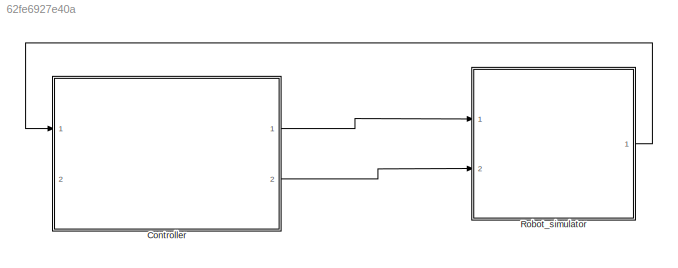
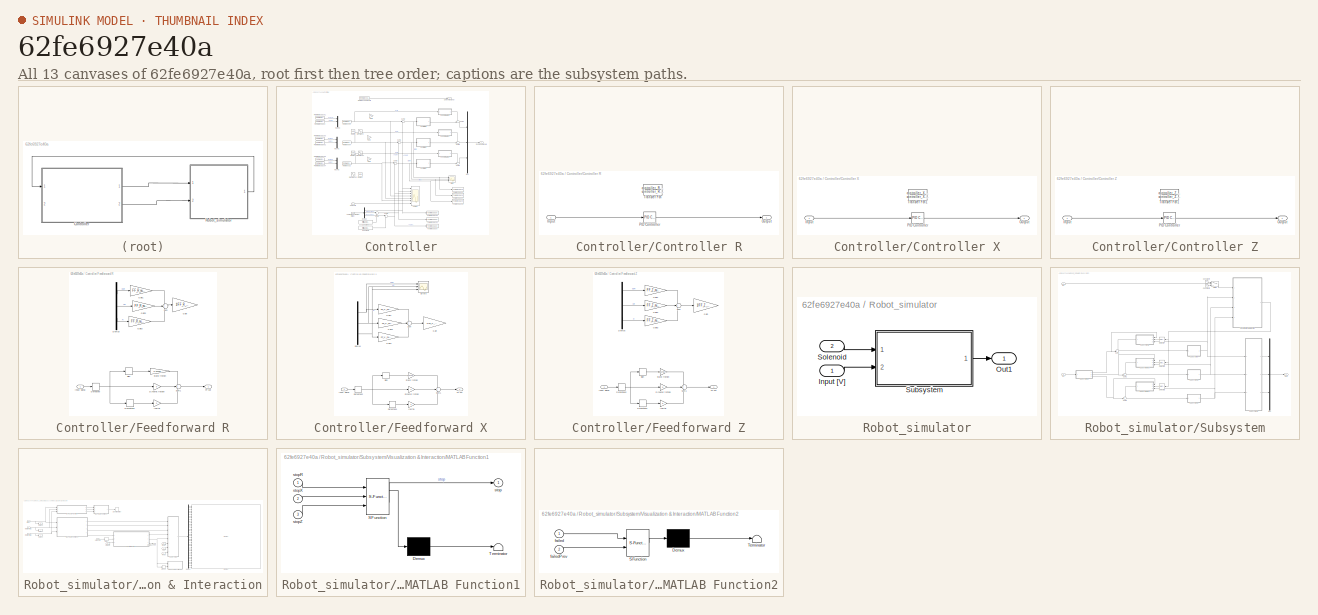
[diagram: thumbnail index - all 13 canvases of the model, root first then tree order]
MODEL slx_62fe6927e40a
KIND model
CONFIG AbsTol = auto
CONFIG EnableMultiTasking = off
CONFIG FixedStep = Ts
CONFIG InitFcn = initRobotArm_p\n\nfs = 2048;\nTs = 1/fs;
CONFIG MaxStep = auto
CONFIG MinStep = auto
CONFIG RelTol = 1e-3
CONFIG SampleTimeConstraint = Unconstrained
CONFIG SolverName = ode3
CONFIG StartFcn = tic
CONFIG StartTime = 0.0
CONFIG StopFcn = toc
CONFIG StopTime = 25
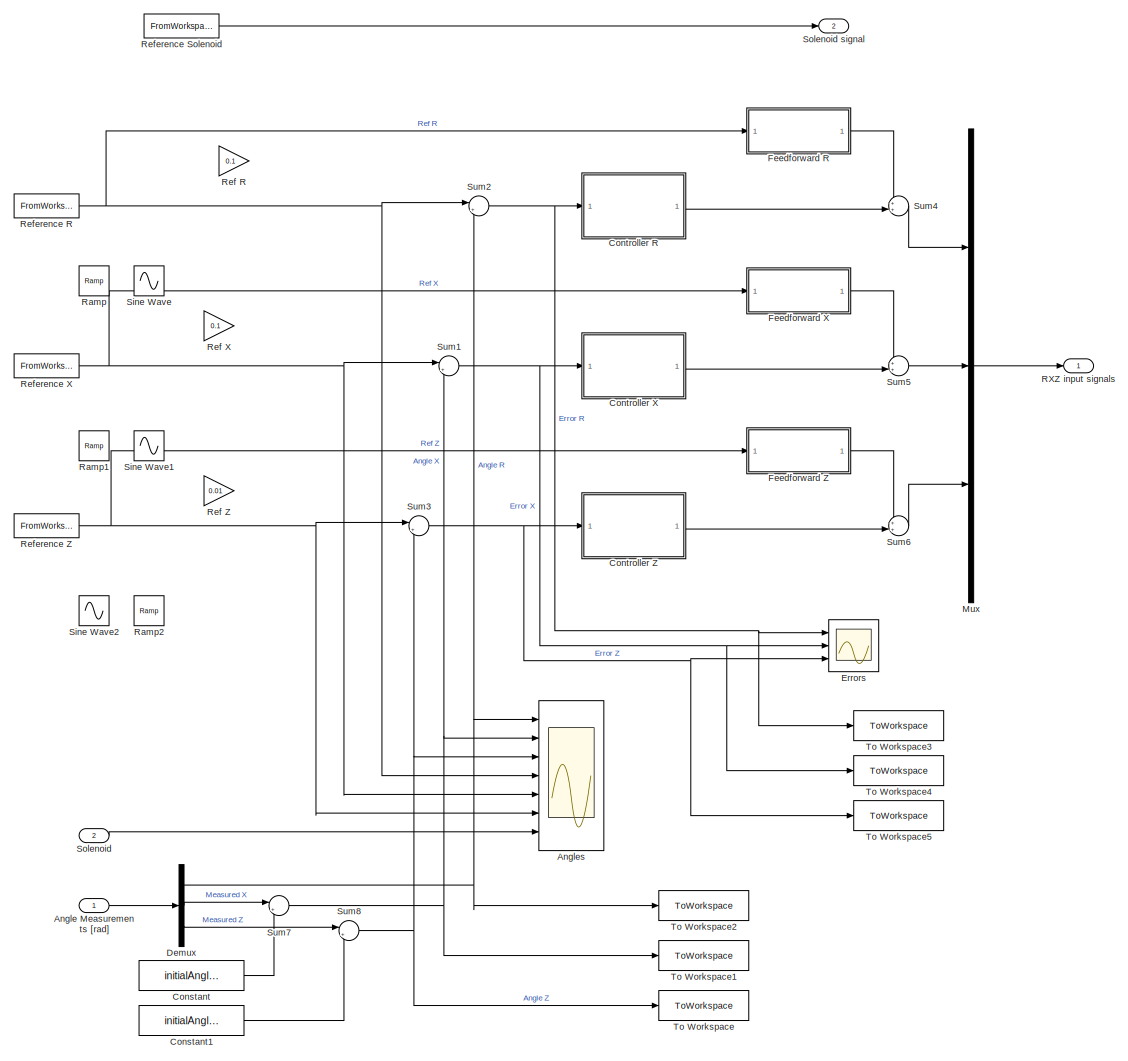
[diagram: Controller - part 1/2, most of the canvas]
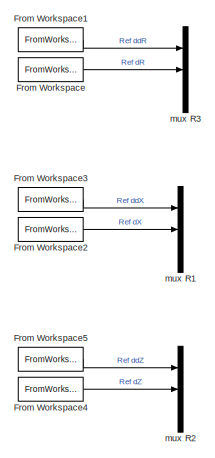
[diagram: Controller - part 2/2, middle left region]
BLOCK [SubSystem] Controller
  Ports = [2, 2]
  RequestExecContextInheritance = off
BLOCK [Inport] Controller/Angle Measurements [rad]
BLOCK [Scope] Controller/Angles
  Floating = off
  NumInputPorts = 7
  Ports = [7]
  ScopeSpecificationString = Simulink.scopes.TimeScopeBlockCfg('CurrentConfiguration', extmgr.ConfigurationSet(extmgr.Configuration('Core','General UI',true),extmgr.Configuration('Core','Source UI',true),extmgr.Configuration('Sources','WiredSimulink',true),extmgr.Configuration('Visuals','Time Domain',true,'SerializedDisplays',{struct('MinYLimReal','-0.7171','MaxYLimReal','1.31875','YLabelReal','','MinYLimMag','0.00000','MaxYL...<+1611ch>
BLOCK [Constant] Controller/Constant
  Value = initialAngleKrukX
BLOCK [Constant] Controller/Constant1
  Value = initialAngleKrukZ
BLOCK [SubSystem] Controller/Controller R
  Ports = [1, 1]
  RequestExecContextInheritance = off
BLOCK [Inport] Controller/Controller R/Input
BLOCK [Outport] Controller/Controller R/Output
  VectorParamsAs1DForOutWhenUnconnected = off
BLOCK [Reference] Controller/Controller R/PID Controller  REF=pid_lib/PID Controller
  Ports = [1, 1]
  SourceBlock = pid_lib/PID Controller
  SourceProductBaseCode = SL
  SourceType = PID 1dof
BLOCK [TransferFcn] Controller/Controller R/Transfer Fcn
  Commented = on
  Denominator = controller_R.shapeit_data.C_tf.Denominator{1,1}
  Numerator = controller_R.shapeit_data.C_tf.Numerator{1,1}
BLOCK [SubSystem] Controller/Controller X
  Ports = [1, 1]
  RequestExecContextInheritance = off
BLOCK [Inport] Controller/Controller X/Input
BLOCK [Outport] Controller/Controller X/Output
  VectorParamsAs1DForOutWhenUnconnected = off
BLOCK [Reference] Controller/Controller X/PID Controller  REF=pid_lib/PID Controller
  Ports = [1, 1]
  SourceBlock = pid_lib/PID Controller
  SourceProductBaseCode = SL
  SourceType = PID 1dof
BLOCK [TransferFcn] Controller/Controller X/Transfer Fcn1
  Commented = on
  Denominator = controller_X.shapeit_data.C_tf.Denominator{1,1}
  Numerator = controller_X.shapeit_data.C_tf.Numerator{1,1}
BLOCK [SubSystem] Controller/Controller Z
  Ports = [1, 1]
  RequestExecContextInheritance = off
BLOCK [Inport] Controller/Controller Z/Input
BLOCK [Outport] Controller/Controller Z/Output
  VectorParamsAs1DForOutWhenUnconnected = off
BLOCK [Reference] Controller/Controller Z/PID Controller  REF=pid_lib/PID Controller
  Ports = [1, 1]
  SourceBlock = pid_lib/PID Controller
  SourceProductBaseCode = SL
  SourceType = PID 1dof
BLOCK [TransferFcn] Controller/Controller Z/Transfer Fcn1
  Commented = on
  Denominator = controller_Z.shapeit_data.C_tf.Denominator{1,1}
  Numerator = controller_Z.shapeit_data.C_tf.Numerator{1,1}
BLOCK [Demux] Controller/Demux
  Outputs = 3
  Ports = [1, 3]
BLOCK [Scope] Controller/Errors
  Floating = off
  NumInputPorts = 3
  Ports = [3]
  ScopeSpecificationString = Simulink.scopes.TimeScopeBlockCfg('CurrentConfiguration', extmgr.ConfigurationSet(extmgr.Configuration('Core','General UI',true),extmgr.Configuration('Core','Source UI',true),extmgr.Configuration('Sources','WiredSimulink',true,'DataLoggingVariableName','ScopeData1'),extmgr.Configuration('Visuals','Time Domain',true,'SerializedDisplays',{struct('MinYLimReal','-0.09781','MaxYLimReal','0.18989','YLab...<+1551ch>
BLOCK [SubSystem] Controller/Feedforward R
  Ports = [1, 1]
  RequestExecContextInheritance = off
BLOCK [Demux] Controller/Feedforward R/Demux
  Commented = on
  Outputs = 3
  Ports = [1, 3]
BLOCK [Derivative] Controller/Feedforward R/Derivative
BLOCK [Derivative] Controller/Feedforward R/Derivative1
BLOCK [Gain] Controller/Feedforward R/Dynamic friction
  Gain = 0
BLOCK [Outport] Controller/Feedforward R/FF out
BLOCK [Gain] Controller/Feedforward R/Gain
  Commented = on
  Gain = 1/FF_R_den
BLOCK [Gain] Controller/Feedforward R/Gain1
  Commented = on
  Gain = FF_R_num(1)
BLOCK [Gain] Controller/Feedforward R/Gain2
  Commented = on
  Gain = FF_R_num(2)
BLOCK [Gain] Controller/Feedforward R/Gain3
  Commented = on
  Gain = FF_R_num(3)
BLOCK [Gain] Controller/Feedforward R/Inertia
  Gain = 0
BLOCK [Inport] Controller/Feedforward R/Input signal
BLOCK [Signum] Controller/Feedforward R/Sign
BLOCK [Gain] Controller/Feedforward R/Static friction
  Gain = 0.2015625
BLOCK [Sum] Controller/Feedforward R/Sum
  Commented = on
  Inputs = +++
  Ports = [3, 1]
BLOCK [Sum] Controller/Feedforward R/Sum1
  Inputs = +++
  Ports = [3, 1]
BLOCK [SubSystem] Controller/Feedforward X
  Ports = [1, 1]
  RequestExecContextInheritance = off
BLOCK [Demux] Controller/Feedforward X/Demux
  Commented = on
  Outputs = 3
  Ports = [1, 3]
BLOCK [Derivative] Controller/Feedforward X/Derivative1
BLOCK [Derivative] Controller/Feedforward X/Derivative2
BLOCK [Gain] Controller/Feedforward X/Dynamic friction
  Gain = 0
BLOCK [Scope] Controller/Feedforward X/Errors
  Commented = on
  Floating = off
  NumInputPorts = 3
  Ports = [3]
  ScopeSpecificationString = Simulink.scopes.TimeScopeBlockCfg('CurrentConfiguration', extmgr.ConfigurationSet(extmgr.Configuration('Core','General UI',true),extmgr.Configuration('Core','Source UI',true),extmgr.Configuration('Sources','WiredSimulink',true,'DataLoggingVariableName','ScopeData1'),extmgr.Configuration('Visuals','Time Domain',true,'SerializedDisplays',{struct('MinYLimReal','-8885.03202','MaxYLimReal','1056.99515'...<+1532ch>
BLOCK [Outport] Controller/Feedforward X/FF out
BLOCK [Gain] Controller/Feedforward X/Gain
  Commented = on
  Gain = 1/FF_X_den
BLOCK [Gain] Controller/Feedforward X/Gain1
  Commented = on
  Gain = FF_X_num(1)
BLOCK [Gain] Controller/Feedforward X/Gain2
  Commented = on
  Gain = FF_X_num(2)
BLOCK [Gain] Controller/Feedforward X/Gain3
  Commented = on
  Gain = FF_X_num(3)
BLOCK [Gain] Controller/Feedforward X/Inertia
  Gain = 0
BLOCK [Inport] Controller/Feedforward X/Input signal
BLOCK [Signum] Controller/Feedforward X/Sign
BLOCK [Gain] Controller/Feedforward X/Static friction
  Gain = 0.15153808
BLOCK [Sum] Controller/Feedforward X/Sum
  Commented = on
  Inputs = +++
  Ports = [3, 1]
BLOCK [Sum] Controller/Feedforward X/Sum1
  Inputs = +++
  Ports = [3, 1]
BLOCK [SubSystem] Controller/Feedforward Z
  Ports = [1, 1]
  RequestExecContextInheritance = off
BLOCK [Demux] Controller/Feedforward Z/Demux
  Commented = on
  Outputs = 3
  Ports = [1, 3]
BLOCK [Derivative] Controller/Feedforward Z/Derivative1
BLOCK [Derivative] Controller/Feedforward Z/Derivative2
BLOCK [Gain] Controller/Feedforward Z/Dynamic friction
  Gain = 0
BLOCK [Outport] Controller/Feedforward Z/FF out
BLOCK [Gain] Controller/Feedforward Z/Gain
  Commented = on
  Gain = 1/FF_Z_den
BLOCK [Gain] Controller/Feedforward Z/Gain1
  Commented = on
  Gain = FF_Z_num(1)
BLOCK [Gain] Controller/Feedforward Z/Gain2
  Commented = on
  Gain = FF_Z_num(2)
BLOCK [Gain] Controller/Feedforward Z/Gain3
  Commented = on
  Gain = FF_Z_num(3)
BLOCK [Gain] Controller/Feedforward Z/Inertia
  Gain = 0
BLOCK [Inport] Controller/Feedforward Z/Input signal
BLOCK [Signum] Controller/Feedforward Z/Sign
BLOCK [Gain] Controller/Feedforward Z/Static friction
  Gain = 0.257885742
BLOCK [Sum] Controller/Feedforward Z/Sum
  Commented = on
  Inputs = +++
  Ports = [3, 1]
BLOCK [Sum] Controller/Feedforward Z/Sum1
  Inputs = +++
  Ports = [3, 1]
BLOCK [FromWorkspace] Controller/From Workspace
  Commented = on
  VariableName = ref_dR
BLOCK [FromWorkspace] Controller/From Workspace1
  Commented = on
  VariableName = ref_ddR
BLOCK [FromWorkspace] Controller/From Workspace2
  Commented = on
  VariableName = ref_dX
BLOCK [FromWorkspace] Controller/From Workspace3
  Commented = on
  VariableName = ref_ddX
BLOCK [FromWorkspace] Controller/From Workspace4
  Commented = on
  NameLocation = top
  VariableName = ref_dZ
BLOCK [FromWorkspace] Controller/From Workspace5
  Commented = on
  VariableName = ref_ddZ
BLOCK [Mux] Controller/Mux
  DisplayOption = bar
  Inputs = 3
  Ports = [3, 1]
BLOCK [Outport] Controller/RXZ input signals
  VectorParamsAs1DForOutWhenUnconnected = off
BLOCK [Reference] Controller/Ramp  REF=simulink/Sources/Ramp
  Commented = on
  Ports = [0, 1]
  SourceBlock = simulink/Sources/Ramp
  SourceProductBaseCode = SL
  SourceType = Ramp
BLOCK [Reference] Controller/Ramp1  REF=simulink/Sources/Ramp
  Commented = on
  Ports = [0, 1]
  SourceBlock = simulink/Sources/Ramp
  SourceProductBaseCode = SL
  SourceType = Ramp
BLOCK [Reference] Controller/Ramp2  REF=simulink/Sources/Ramp
  Commented = on
  Ports = [0, 1]
  SourceBlock = simulink/Sources/Ramp
  SourceProductBaseCode = SL
  SourceType = Ramp
BLOCK [Gain] Controller/Ref R
  Commented = on
  Gain = 0.1
BLOCK [Gain] Controller/Ref X
  Commented = on
  Gain = 0.1
BLOCK [Gain] Controller/Ref Z
  Commented = on
  Gain = 0.01
BLOCK [FromWorkspace] Controller/Reference R
  VariableName = ref_R
BLOCK [FromWorkspace] Controller/Reference Solenoid
  VariableName = ref_solenoid
BLOCK [FromWorkspace] Controller/Reference X
  VariableName = ref_X
BLOCK [FromWorkspace] Controller/Reference Z
  VariableName = ref_Z
BLOCK [Sin] Controller/Sine Wave
  Amplitude = 0.1
  Commented = on
  Ports = [0, 1]
  SampleTime = 0
BLOCK [Sin] Controller/Sine Wave1
  Amplitude = 0.1
  Commented = on
  Ports = [0, 1]
  SampleTime = 0
BLOCK [Sin] Controller/Sine Wave2
  Amplitude = 0.1
  Commented = on
  Ports = [0, 1]
  SampleTime = 0
BLOCK [Inport] Controller/Solenoid
  Port = 2
BLOCK [Outport] Controller/Solenoid signal
  InitialOutput = 0
  Port = 2
  VectorParamsAs1DForOutWhenUnconnected = off
BLOCK [Sum] Controller/Sum1
  Inputs = |+-
  Ports = [2, 1]
BLOCK [Sum] Controller/Sum2
  Inputs = |+-
  Ports = [2, 1]
BLOCK [Sum] Controller/Sum3
  Inputs = |+-
  Ports = [2, 1]
BLOCK [Sum] Controller/Sum4
  InputSameDT = on
  Inputs = ++|
  OutDataTypeStr = Inherit: Same as first input
  Ports = [2, 1]
  SaturateOnIntegerOverflow = on
BLOCK [Sum] Controller/Sum5
  InputSameDT = on
  Inputs = ++|
  OutDataTypeStr = Inherit: Same as first input
  Ports = [2, 1]
  SaturateOnIntegerOverflow = on
BLOCK [Sum] Controller/Sum6
  InputSameDT = on
  Inputs = ++|
  OutDataTypeStr = Inherit: Same as first input
  Ports = [2, 1]
  SaturateOnIntegerOverflow = on
BLOCK [Sum] Controller/Sum7
  Inputs = |++
  Ports = [2, 1]
BLOCK [Sum] Controller/Sum8
  Inputs = |++
  Ports = [2, 1]
BLOCK [ToWorkspace] Controller/To Workspace
  FixptAsFi = on
  MaxDataPoints = inf
  Ports = [1]
  SampleTime = -1
  SaveFormat = Timeseries
  VariableName = out_Z
BLOCK [ToWorkspace] Controller/To Workspace1
  FixptAsFi = on
  MaxDataPoints = inf
  Ports = [1]
  SampleTime = -1
  SaveFormat = Timeseries
  VariableName = out_X
BLOCK [ToWorkspace] Controller/To Workspace2
  FixptAsFi = on
  MaxDataPoints = inf
  Ports = [1]
  SampleTime = -1
  SaveFormat = Timeseries
  VariableName = out_R
BLOCK [ToWorkspace] Controller/To Workspace3
  FixptAsFi = on
  MaxDataPoints = inf
  Ports = [1]
  SampleTime = -1
  SaveFormat = Timeseries
  VariableName = error_R
BLOCK [ToWorkspace] Controller/To Workspace4
  FixptAsFi = on
  MaxDataPoints = inf
  Ports = [1]
  SampleTime = -1
  SaveFormat = Timeseries
  VariableName = error_X
BLOCK [ToWorkspace] Controller/To Workspace5
  FixptAsFi = on
  MaxDataPoints = inf
  Ports = [1]
  SampleTime = -1
  SaveFormat = Timeseries
  VariableName = error_Z
BLOCK [Mux] Controller/mux R1
  Commented = on
  DisplayOption = bar
  Inputs = 3
  Ports = [3, 1]
BLOCK [Mux] Controller/mux R2
  Commented = on
  DisplayOption = bar
  Inputs = 3
  Ports = [3, 1]
BLOCK [Mux] Controller/mux R3
  Commented = on
  DisplayOption = bar
  Inputs = 3
  Ports = [3, 1]
BLOCK [SubSystem] Robot_simulator
  MaskHideContents = on
  MinAlgLoopOccurrences = on
  OpenFcn = open('robotArmModel.wrl')
  Ports = [2, 1]
  RequestExecContextInheritance = off
  TreatAsAtomicUnit = on
BLOCK [Inport] Robot_simulator/Input [V]
BLOCK [Outport] Robot_simulator/Out1
  VectorParamsAs1DForOutWhenUnconnected = off
BLOCK [Inport] Robot_simulator/Solenoid
  Port = 2
BLOCK [SubSystem] Robot_simulator/Subsystem
  MaskHideContents = on
  Permissions = NoReadOrWrite
  Ports = [2, 1]
  RequestExecContextInheritance = off
BLOCK [Constant] Robot_simulator/Subsystem/Constant4
BLOCK [Constant] Robot_simulator/Subsystem/Constant5
  Value = 0
BLOCK [Inport] Robot_simulator/Subsystem/In1
BLOCK [Inport] Robot_simulator/Subsystem/In2
  Port = 2
BLOCK [Mux] Robot_simulator/Subsystem/Mux
  DisplayOption = bar
  Inputs = 3
  Ports = [3, 1]
BLOCK [Outport] Robot_simulator/Subsystem/Out1
BLOCK [Selector] Robot_simulator/Subsystem/Selector
  IndexOptions = Index vector (dialog)
  Indices = [1]
  InputPortWidth = 3
  NameLocation = top
  OutputSizes = 1
  Ports = [1, 1]
BLOCK [Selector] Robot_simulator/Subsystem/Selector1
  IndexOptions = Index vector (dialog)
  Indices = [2]
  InputPortWidth = 3
  NameLocation = top
  OutputSizes = 1
  Ports = [1, 1]
BLOCK [Selector] Robot_simulator/Subsystem/Selector2
  IndexOptions = Index vector (dialog)
  Indices = [3]
  InputPortWidth = 3
  NameLocation = top
  OutputSizes = 1
  Ports = [1, 1]
BLOCK [ModelReference] Robot_simulator/Subsystem/Subsystem
  CopyOfModelProtected = on
  ModelNameDialog = Subsystem7
  ModelReferenceVersion = 1.943
  Ports = [1, 1]
BLOCK [ModelReference] Robot_simulator/Subsystem/Subsystem 8
  CopyOfModelProtected = on
  ModelNameDialog = Subsystem8
  ModelReferenceVersion = 1.970
  NameLocation = top
  Ports = [3, 1]
BLOCK [ModelReference] Robot_simulator/Subsystem/Subsystem1
  CopyOfModelProtected = on
  ModelNameDialog = Subsystem10
  ModelReferenceVersion = 1.936
  Ports = [1, 3]
BLOCK [ModelReference] Robot_simulator/Subsystem/Subsystem2
  CopyOfModelProtected = on
  ModelNameDialog = Subsystem20
  ModelReferenceVersion = 1.937
  Ports = [3, 3]
BLOCK [ModelReference] Robot_simulator/Subsystem/Subsystem3
  CopyOfModelProtected = on
  ModelNameDialog = Subsystem31
  ModelReferenceVersion = 1.941
  Ports = [1, 1]
BLOCK [ModelReference] Robot_simulator/Subsystem/Subsystem30
  CopyOfModelProtected = on
  ModelNameDialog = Subsystem30
  ModelReferenceVersion = 1.946
  NameLocation = top
  Ports = [3, 1]
BLOCK [ModelReference] Robot_simulator/Subsystem/Subsystem4
  CopyOfModelProtected = on
  ModelNameDialog = Subsystem41
  ModelReferenceVersion = 1.937
  Ports = [1, 1]
BLOCK [ModelReference] Robot_simulator/Subsystem/Subsystem40
  CopyOfModelProtected = on
  ModelNameDialog = Subsystem40
  ModelReferenceVersion = 1.947
  NameLocation = top
  Ports = [3, 1]
BLOCK [Sum] Robot_simulator/Subsystem/Sum1
  Inputs = ++|
  Ports = [2, 1]
BLOCK [Sum] Robot_simulator/Subsystem/Sum2
  Inputs = ++|
  Ports = [2, 1]
BLOCK [Sum] Robot_simulator/Subsystem/Sum3
  Inputs = ++|
  Ports = [2, 1]
BLOCK [Switch] Robot_simulator/Subsystem/Switch
  Criteria = u2 ~= 0
  InputSameDT = off
  SaturateOnIntegerOverflow = off
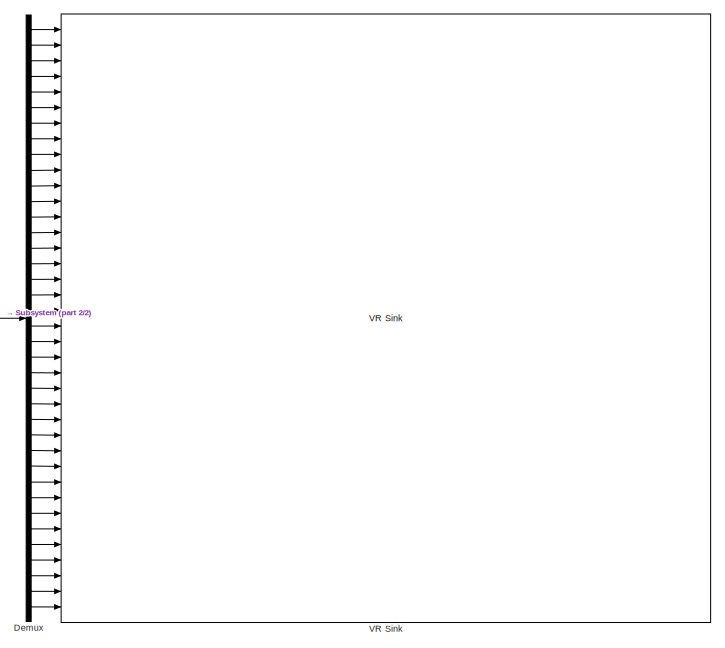
[diagram: Robot_simulator/Subsystem/Visualization & Interaction - part 1/2, right side, full height]
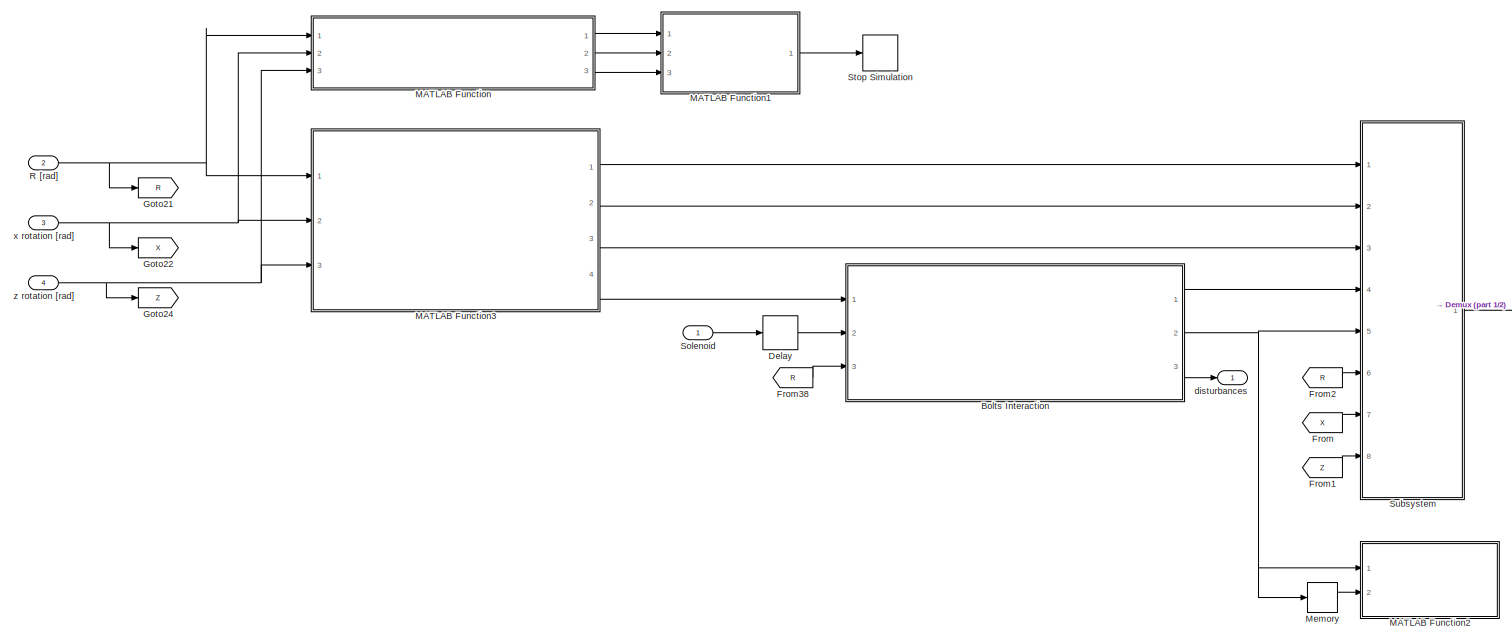
[diagram: Robot_simulator/Subsystem/Visualization & Interaction - part 2/2, center side, full height]
BLOCK [SubSystem] Robot_simulator/Subsystem/Visualization & Interaction
  Ports = [4, 1]
  RequestExecContextInheritance = off
BLOCK [ModelReference] Robot_simulator/Subsystem/Visualization & Interaction/Bolts Interaction
  CopyOfModelProtected = on
  ModelNameDialog = Bolts_Interaction
  ModelReferenceVersion = 1.926
  Ports = [3, 3]
BLOCK [Delay] Robot_simulator/Subsystem/Visualization & Interaction/Delay
  DelayLength = 1
  InputPortMap = u0
  Ports = [1, 1]
BLOCK [Demux] Robot_simulator/Subsystem/Visualization & Interaction/Demux
  Outputs = 38
  Ports = [1, 38]
BLOCK [From] Robot_simulator/Subsystem/Visualization & Interaction/From
  GotoTag = X
BLOCK [From] Robot_simulator/Subsystem/Visualization & Interaction/From1
  GotoTag = Z
BLOCK [From] Robot_simulator/Subsystem/Visualization & Interaction/From2
  GotoTag = R
BLOCK [From] Robot_simulator/Subsystem/Visualization & Interaction/From38
  GotoTag = R
BLOCK [Goto] Robot_simulator/Subsystem/Visualization & Interaction/Goto21
  GotoTag = R
BLOCK [Goto] Robot_simulator/Subsystem/Visualization & Interaction/Goto22
  GotoTag = X
BLOCK [Goto] Robot_simulator/Subsystem/Visualization & Interaction/Goto24
  GotoTag = Z
BLOCK [ModelReference] Robot_simulator/Subsystem/Visualization & Interaction/MATLAB Function
  CopyOfModelProtected = on
  ModelNameDialog = MATLAB_Function
  ModelReferenceVersion = 1.937
  Ports = [3, 3]
BLOCK [SubSystem] Robot_simulator/Subsystem/Visualization & Interaction/MATLAB Function1
  ErrorFcn = Stateflow.Translate.translate
  PermitHierarchicalResolution = ExplicitOnly
  Ports = [3, 1]
  RequestExecContextInheritance = off
  SFBlockType = MATLAB Function
  TreatAsAtomicUnit = on
BLOCK [Demux] Robot_simulator/Subsystem/Visualization & Interaction/MATLAB Function1/ Demux 
  Outputs = 1
  Ports = [1, 1]
BLOCK [S-Function] Robot_simulator/Subsystem/Visualization & Interaction/MATLAB Function1/ SFunction 
  EnableBusSupport = on
  FunctionName = sf_sfun
  PortCounts = [3 2]
  Ports = [3, 2]
  SFcnIsStateOwnerBlock = off
  SFunctionDeploymentMode = off
  Tag = Stateflow S-Function 2
BLOCK [Terminator] Robot_simulator/Subsystem/Visualization & Interaction/MATLAB Function1/ Terminator 
BLOCK [Outport] Robot_simulator/Subsystem/Visualization & Interaction/MATLAB Function1/stop
BLOCK [Inport] Robot_simulator/Subsystem/Visualization & Interaction/MATLAB Function1/stopR
BLOCK [Inport] Robot_simulator/Subsystem/Visualization & Interaction/MATLAB Function1/stopX
  Port = 2
BLOCK [Inport] Robot_simulator/Subsystem/Visualization & Interaction/MATLAB Function1/stopZ
  Port = 3
BLOCK [SubSystem] Robot_simulator/Subsystem/Visualization & Interaction/MATLAB Function2
  ErrorFcn = Stateflow.Translate.translate
  PermitHierarchicalResolution = ExplicitOnly
  Ports = [2]
  RequestExecContextInheritance = off
  SFBlockType = MATLAB Function
  TreatAsAtomicUnit = on
BLOCK [Demux] Robot_simulator/Subsystem/Visualization & Interaction/MATLAB Function2/ Demux 
  Outputs = 1
  Ports = [1, 1]
BLOCK [S-Function] Robot_simulator/Subsystem/Visualization & Interaction/MATLAB Function2/ SFunction 
  EnableBusSupport = on
  FunctionName = sf_sfun
  PortCounts = [2 1]
  Ports = [2, 1]
  SFcnIsStateOwnerBlock = off
  SFunctionDeploymentMode = off
  Tag = Stateflow S-Function 1
BLOCK [Terminator] Robot_simulator/Subsystem/Visualization & Interaction/MATLAB Function2/ Terminator 
BLOCK [Inport] Robot_simulator/Subsystem/Visualization & Interaction/MATLAB Function2/failed
BLOCK [Inport] Robot_simulator/Subsystem/Visualization & Interaction/MATLAB Function2/failedPrev
  Port = 2
BLOCK [ModelReference] Robot_simulator/Subsystem/Visualization & Interaction/MATLAB Function3
  CopyOfModelProtected = on
  ModelNameDialog = MATLAB_Function3
  ModelReferenceVersion = 1.926
  Ports = [3, 4]
BLOCK [Memory] Robot_simulator/Subsystem/Visualization & Interaction/Memory
BLOCK [Inport] Robot_simulator/Subsystem/Visualization & Interaction/R [rad]
  Port = 2
BLOCK [Inport] Robot_simulator/Subsystem/Visualization & Interaction/Solenoid
BLOCK [Stop] Robot_simulator/Subsystem/Visualization & Interaction/Stop Simulation
BLOCK [ModelReference] Robot_simulator/Subsystem/Visualization & Interaction/Subsystem
  CopyOfModelProtected = on
  ModelNameDialog = Subsystem9
  ModelReferenceVersion = 1.945
  Ports = [8, 1]
BLOCK [Reference] Robot_simulator/Subsystem/Visualization & Interaction/VR Sink  REF=vrlib/VR Sink
  InstantiateOnLoad = on
  Ports = [38]
  SourceBlock = vrlib/VR Sink
  SourceProductBaseCode = SL
  SourceType = Virtual Reality Sink
BLOCK [Outport] Robot_simulator/Subsystem/Visualization & Interaction/disturbances
BLOCK [Inport] Robot_simulator/Subsystem/Visualization & Interaction/x rotation [rad]
  Port = 3
BLOCK [Inport] Robot_simulator/Subsystem/Visualization & Interaction/z rotation [rad]
  Port = 4
LINE Controller/Angle Measurements [rad]:1 -> Controller/Demux:1
LINE Controller/Constant1:1 -> Controller/Sum8:2
LINE Controller/Constant:1 -> Controller/Sum7:2
LINE Controller/Controller R/Input:1 -> Controller/Controller R/PID Controller:1
LINE Controller/Controller R/PID Controller:1 -> Controller/Controller R/Output:1
LINE Controller/Controller R:1 -> Controller/Sum4:2
LINE Controller/Controller X/Input:1 -> Controller/Controller X/PID Controller:1
LINE Controller/Controller X/PID Controller:1 -> Controller/Controller X/Output:1
LINE Controller/Controller X:1 -> Controller/Sum5:2
LINE Controller/Controller Z/Input:1 -> Controller/Controller Z/PID Controller:1
LINE Controller/Controller Z/PID Controller:1 -> Controller/Controller Z/Output:1
LINE Controller/Controller Z:1 -> Controller/Sum6:2
NET Controller/Demux:1 -> Controller/Angles:1, Controller/Sum2:2, Controller/To Workspace2:1
LINE Controller/Demux:2 -> Controller/Sum7:1
LINE Controller/Demux:3 -> Controller/Sum8:1
LINE Controller/Feedforward R/Demux:1 -> Controller/Feedforward R/Gain1:1
LINE Controller/Feedforward R/Demux:2 -> Controller/Feedforward R/Gain2:1
LINE Controller/Feedforward R/Demux:3 -> Controller/Feedforward R/Gain3:1
LINE Controller/Feedforward R/Derivative1:1 -> Controller/Feedforward R/Inertia:1
NET Controller/Feedforward R/Derivative:1 -> Controller/Feedforward R/Derivative1:1, Controller/Feedforward R/Dynamic friction:1, Controller/Feedforward R/Sign:1
LINE Controller/Feedforward R/Dynamic friction:1 -> Controller/Feedforward R/Sum1:2
LINE Controller/Feedforward R/Gain1:1 -> Controller/Feedforward R/Sum:1
LINE Controller/Feedforward R/Gain2:1 -> Controller/Feedforward R/Sum:2
LINE Controller/Feedforward R/Gain3:1 -> Controller/Feedforward R/Sum:3
LINE Controller/Feedforward R/Inertia:1 -> Controller/Feedforward R/Sum1:3
LINE Controller/Feedforward R/Input signal:1 -> Controller/Feedforward R/Derivative:1
LINE Controller/Feedforward R/Sign:1 -> Controller/Feedforward R/Static friction:1
LINE Controller/Feedforward R/Static friction:1 -> Controller/Feedforward R/Sum1:1
LINE Controller/Feedforward R/Sum1:1 -> Controller/Feedforward R/FF out:1
LINE Controller/Feedforward R/Sum:1 -> Controller/Feedforward R/Gain:1
LINE Controller/Feedforward R:1 -> Controller/Sum4:1
NET Controller/Feedforward X/Demux:1 -> Controller/Feedforward X/Errors:1, Controller/Feedforward X/Gain1:1
NET Controller/Feedforward X/Demux:2 -> Controller/Feedforward X/Errors:2, Controller/Feedforward X/Gain2:1
NET Controller/Feedforward X/Demux:3 -> Controller/Feedforward X/Errors:3, Controller/Feedforward X/Gain3:1
LINE Controller/Feedforward X/Derivative1:1 -> Controller/Feedforward X/Inertia:1
NET Controller/Feedforward X/Derivative2:1 -> Controller/Feedforward X/Derivative1:1, Controller/Feedforward X/Dynamic friction:1, Controller/Feedforward X/Sign:1
LINE Controller/Feedforward X/Dynamic friction:1 -> Controller/Feedforward X/Sum1:2
LINE Controller/Feedforward X/Gain1:1 -> Controller/Feedforward X/Sum:1
LINE Controller/Feedforward X/Gain2:1 -> Controller/Feedforward X/Sum:2
LINE Controller/Feedforward X/Gain3:1 -> Controller/Feedforward X/Sum:3
LINE Controller/Feedforward X/Inertia:1 -> Controller/Feedforward X/Sum1:3
LINE Controller/Feedforward X/Input signal:1 -> Controller/Feedforward X/Derivative2:1
LINE Controller/Feedforward X/Sign:1 -> Controller/Feedforward X/Static friction:1
LINE Controller/Feedforward X/Static friction:1 -> Controller/Feedforward X/Sum1:1
LINE Controller/Feedforward X/Sum1:1 -> Controller/Feedforward X/FF out:1
LINE Controller/Feedforward X/Sum:1 -> Controller/Feedforward X/Gain:1
LINE Controller/Feedforward X:1 -> Controller/Sum5:1
LINE Controller/Feedforward Z/Demux:1 -> Controller/Feedforward Z/Gain1:1
LINE Controller/Feedforward Z/Demux:2 -> Controller/Feedforward Z/Gain2:1
LINE Controller/Feedforward Z/Demux:3 -> Controller/Feedforward Z/Gain3:1
LINE Controller/Feedforward Z/Derivative1:1 -> Controller/Feedforward Z/Inertia:1
NET Controller/Feedforward Z/Derivative2:1 -> Controller/Feedforward Z/Derivative1:1, Controller/Feedforward Z/Dynamic friction:1, Controller/Feedforward Z/Sign:1
LINE Controller/Feedforward Z/Dynamic friction:1 -> Controller/Feedforward Z/Sum1:2
LINE Controller/Feedforward Z/Gain1:1 -> Controller/Feedforward Z/Sum:1
LINE Controller/Feedforward Z/Gain2:1 -> Controller/Feedforward Z/Sum:2
LINE Controller/Feedforward Z/Gain3:1 -> Controller/Feedforward Z/Sum:3
LINE Controller/Feedforward Z/Inertia:1 -> Controller/Feedforward Z/Sum1:3
LINE Controller/Feedforward Z/Input signal:1 -> Controller/Feedforward Z/Derivative2:1
LINE Controller/Feedforward Z/Sign:1 -> Controller/Feedforward Z/Static friction:1
LINE Controller/Feedforward Z/Static friction:1 -> Controller/Feedforward Z/Sum1:1
LINE Controller/Feedforward Z/Sum1:1 -> Controller/Feedforward Z/FF out:1
LINE Controller/Feedforward Z/Sum:1 -> Controller/Feedforward Z/Gain:1
LINE Controller/Feedforward Z:1 -> Controller/Sum6:1
LINE Controller/From Workspace1:1 -> Controller/mux R3:1
LINE Controller/From Workspace2:1 -> Controller/mux R1:2
LINE Controller/From Workspace3:1 -> Controller/mux R1:1
LINE Controller/From Workspace4:1 -> Controller/mux R2:2
LINE Controller/From Workspace5:1 -> Controller/mux R2:1
LINE Controller/From Workspace:1 -> Controller/mux R3:2
LINE Controller/Mux:1 -> Controller/RXZ input signals:1
NET Controller/Reference R:1 -> Controller/Angles:4, Controller/Feedforward R:1, Controller/Sum2:1
LINE Controller/Reference Solenoid:1 -> Controller/Solenoid signal:1
NET Controller/Reference X:1 -> Controller/Angles:5, Controller/Feedforward X:1, Controller/Sum1:1
NET Controller/Reference Z:1 -> Controller/Angles:6, Controller/Feedforward Z:1, Controller/Sum3:1
LINE Controller/Solenoid:1 -> Controller/Angles:7
NET Controller/Sum1:1 -> Controller/Controller X:1, Controller/Errors:2, Controller/To Workspace4:1
NET Controller/Sum2:1 -> Controller/Controller R:1, Controller/Errors:1, Controller/To Workspace3:1
NET Controller/Sum3:1 -> Controller/Controller Z:1, Controller/Errors:3, Controller/To Workspace5:1
LINE Controller/Sum4:1 -> Controller/Mux:1
LINE Controller/Sum5:1 -> Controller/Mux:2
LINE Controller/Sum6:1 -> Controller/Mux:3
NET Controller/Sum7:1 -> Controller/Angles:2, Controller/Sum1:2, Controller/To Workspace1:1
NET Controller/Sum8:1 -> Controller/Angles:3, Controller/Sum3:2, Controller/To Workspace:1
LINE Controller:1 -> Robot_simulator:1
LINE Controller:2 -> Robot_simulator:2
LINE Robot_simulator/Input [V]:1 -> Robot_simulator/Subsystem:2
LINE Robot_simulator/Solenoid:1 -> Robot_simulator/Subsystem:1
LINE Robot_simulator/Subsystem/Constant4:1 -> Robot_simulator/Subsystem/Switch:1
LINE Robot_simulator/Subsystem/Constant5:1 -> Robot_simulator/Subsystem/Switch:3
LINE Robot_simulator/Subsystem/In1:1 -> Robot_simulator/Subsystem/Switch:2
LINE Robot_simulator/Subsystem/In2:1 -> Robot_simulator/Subsystem/Subsystem1:1
LINE Robot_simulator/Subsystem/Mux:1 -> Robot_simulator/Subsystem/Out1:1
LINE Robot_simulator/Subsystem/Selector1:1 -> Robot_simulator/Subsystem/Subsystem30:2
LINE Robot_simulator/Subsystem/Selector2:1 -> Robot_simulator/Subsystem/Subsystem40:2
LINE Robot_simulator/Subsystem/Selector:1 -> Robot_simulator/Subsystem/Subsystem 8:2
LINE Robot_simulator/Subsystem/Subsystem 8:1 -> Robot_simulator/Subsystem/Sum3:1
NET Robot_simulator/Subsystem/Subsystem1:1 -> Robot_simulator/Subsystem/Subsystem 8:1, Robot_simulator/Subsystem/Sum3:2
NET Robot_simulator/Subsystem/Subsystem1:2 -> Robot_simulator/Subsystem/Subsystem30:1, Robot_simulator/Subsystem/Sum1:2
NET Robot_simulator/Subsystem/Subsystem1:3 -> Robot_simulator/Subsystem/Subsystem40:1, Robot_simulator/Subsystem/Sum2:2
LINE Robot_simulator/Subsystem/Subsystem2:1 -> Robot_simulator/Subsystem/Mux:1
LINE Robot_simulator/Subsystem/Subsystem2:2 -> Robot_simulator/Subsystem/Mux:2
LINE Robot_simulator/Subsystem/Subsystem2:3 -> Robot_simulator/Subsystem/Mux:3
LINE Robot_simulator/Subsystem/Subsystem30:1 -> Robot_simulator/Subsystem/Sum1:1
NET Robot_simulator/Subsystem/Subsystem3:1 -> Robot_simulator/Subsystem/Subsystem2:2, Robot_simulator/Subsystem/Subsystem30:3, Robot_simulator/Subsystem/Visualization & Interaction:3
LINE Robot_simulator/Subsystem/Subsystem40:1 -> Robot_simulator/Subsystem/Sum2:1
NET Robot_simulator/Subsystem/Subsystem4:1 -> Robot_simulator/Subsystem/Subsystem2:3, Robot_simulator/Subsystem/Subsystem40:3, Robot_simulator/Subsystem/Visualization & Interaction:4
NET Robot_simulator/Subsystem/Subsystem:1 -> Robot_simulator/Subsystem/Subsystem 8:3, Robot_simulator/Subsystem/Subsystem2:1, Robot_simulator/Subsystem/Visualization & Interaction:2
LINE Robot_simulator/Subsystem/Sum1:1 -> Robot_simulator/Subsystem/Subsystem3:1
LINE Robot_simulator/Subsystem/Sum2:1 -> Robot_simulator/Subsystem/Subsystem4:1
LINE Robot_simulator/Subsystem/Sum3:1 -> Robot_simulator/Subsystem/Subsystem:1
LINE Robot_simulator/Subsystem/Switch:1 -> Robot_simulator/Subsystem/Visualization & Interaction:1
LINE Robot_simulator/Subsystem/Visualization & Interaction/Bolts Interaction:1 -> Robot_simulator/Subsystem/Visualization & Interaction/Subsystem:4
NET Robot_simulator/Subsystem/Visualization & Interaction/Bolts Interaction:2 -> Robot_simulator/Subsystem/Visualization & Interaction/MATLAB Function2:1, Robot_simulator/Subsystem/Visualization & Interaction/Memory:1, Robot_simulator/Subsystem/Visualization & Interaction/Subsystem:5
LINE Robot_simulator/Subsystem/Visualization & Interaction/Bolts Interaction:3 -> Robot_simulator/Subsystem/Visualization & Interaction/disturbances:1
LINE Robot_simulator/Subsystem/Visualization & Interaction/Delay:1 -> Robot_simulator/Subsystem/Visualization & Interaction/Bolts Interaction:2
LINE Robot_simulator/Subsystem/Visualization & Interaction/Demux:1 -> Robot_simulator/Subsystem/Visualization & Interaction/VR Sink:1
LINE Robot_simulator/Subsystem/Visualization & Interaction/Demux:10 -> Robot_simulator/Subsystem/Visualization & Interaction/VR Sink:10
LINE Robot_simulator/Subsystem/Visualization & Interaction/Demux:11 -> Robot_simulator/Subsystem/Visualization & Interaction/VR Sink:11
LINE Robot_simulator/Subsystem/Visualization & Interaction/Demux:12 -> Robot_simulator/Subsystem/Visualization & Interaction/VR Sink:12
LINE Robot_simulator/Subsystem/Visualization & Interaction/Demux:13 -> Robot_simulator/Subsystem/Visualization & Interaction/VR Sink:13
LINE Robot_simulator/Subsystem/Visualization & Interaction/Demux:14 -> Robot_simulator/Subsystem/Visualization & Interaction/VR Sink:14
LINE Robot_simulator/Subsystem/Visualization & Interaction/Demux:15 -> Robot_simulator/Subsystem/Visualization & Interaction/VR Sink:15
LINE Robot_simulator/Subsystem/Visualization & Interaction/Demux:16 -> Robot_simulator/Subsystem/Visualization & Interaction/VR Sink:16
LINE Robot_simulator/Subsystem/Visualization & Interaction/Demux:17 -> Robot_simulator/Subsystem/Visualization & Interaction/VR Sink:17
LINE Robot_simulator/Subsystem/Visualization & Interaction/Demux:18 -> Robot_simulator/Subsystem/Visualization & Interaction/VR Sink:18
LINE Robot_simulator/Subsystem/Visualization & Interaction/Demux:19 -> Robot_simulator/Subsystem/Visualization & Interaction/VR Sink:19
LINE Robot_simulator/Subsystem/Visualization & Interaction/Demux:2 -> Robot_simulator/Subsystem/Visualization & Interaction/VR Sink:2
LINE Robot_simulator/Subsystem/Visualization & Interaction/Demux:20 -> Robot_simulator/Subsystem/Visualization & Interaction/VR Sink:20
LINE Robot_simulator/Subsystem/Visualization & Interaction/Demux:21 -> Robot_simulator/Subsystem/Visualization & Interaction/VR Sink:21
LINE Robot_simulator/Subsystem/Visualization & Interaction/Demux:22 -> Robot_simulator/Subsystem/Visualization & Interaction/VR Sink:22
LINE Robot_simulator/Subsystem/Visualization & Interaction/Demux:23 -> Robot_simulator/Subsystem/Visualization & Interaction/VR Sink:23
LINE Robot_simulator/Subsystem/Visualization & Interaction/Demux:24 -> Robot_simulator/Subsystem/Visualization & Interaction/VR Sink:24
LINE Robot_simulator/Subsystem/Visualization & Interaction/Demux:25 -> Robot_simulator/Subsystem/Visualization & Interaction/VR Sink:25
LINE Robot_simulator/Subsystem/Visualization & Interaction/Demux:26 -> Robot_simulator/Subsystem/Visualization & Interaction/VR Sink:26
LINE Robot_simulator/Subsystem/Visualization & Interaction/Demux:27 -> Robot_simulator/Subsystem/Visualization & Interaction/VR Sink:27
LINE Robot_simulator/Subsystem/Visualization & Interaction/Demux:28 -> Robot_simulator/Subsystem/Visualization & Interaction/VR Sink:28
LINE Robot_simulator/Subsystem/Visualization & Interaction/Demux:29 -> Robot_simulator/Subsystem/Visualization & Interaction/VR Sink:29
LINE Robot_simulator/Subsystem/Visualization & Interaction/Demux:3 -> Robot_simulator/Subsystem/Visualization & Interaction/VR Sink:3
LINE Robot_simulator/Subsystem/Visualization & Interaction/Demux:30 -> Robot_simulator/Subsystem/Visualization & Interaction/VR Sink:30
LINE Robot_simulator/Subsystem/Visualization & Interaction/Demux:31 -> Robot_simulator/Subsystem/Visualization & Interaction/VR Sink:31
LINE Robot_simulator/Subsystem/Visualization & Interaction/Demux:32 -> Robot_simulator/Subsystem/Visualization & Interaction/VR Sink:32
LINE Robot_simulator/Subsystem/Visualization & Interaction/Demux:33 -> Robot_simulator/Subsystem/Visualization & Interaction/VR Sink:33
LINE Robot_simulator/Subsystem/Visualization & Interaction/Demux:34 -> Robot_simulator/Subsystem/Visualization & Interaction/VR Sink:34
LINE Robot_simulator/Subsystem/Visualization & Interaction/Demux:35 -> Robot_simulator/Subsystem/Visualization & Interaction/VR Sink:35
LINE Robot_simulator/Subsystem/Visualization & Interaction/Demux:36 -> Robot_simulator/Subsystem/Visualization & Interaction/VR Sink:36
LINE Robot_simulator/Subsystem/Visualization & Interaction/Demux:37 -> Robot_simulator/Subsystem/Visualization & Interaction/VR Sink:37
LINE Robot_simulator/Subsystem/Visualization & Interaction/Demux:38 -> Robot_simulator/Subsystem/Visualization & Interaction/VR Sink:38
LINE Robot_simulator/Subsystem/Visualization & Interaction/Demux:4 -> Robot_simulator/Subsystem/Visualization & Interaction/VR Sink:4
LINE Robot_simulator/Subsystem/Visualization & Interaction/Demux:5 -> Robot_simulator/Subsystem/Visualization & Interaction/VR Sink:5
LINE Robot_simulator/Subsystem/Visualization & Interaction/Demux:6 -> Robot_simulator/Subsystem/Visualization & Interaction/VR Sink:6
LINE Robot_simulator/Subsystem/Visualization & Interaction/Demux:7 -> Robot_simulator/Subsystem/Visualization & Interaction/VR Sink:7
LINE Robot_simulator/Subsystem/Visualization & Interaction/Demux:8 -> Robot_simulator/Subsystem/Visualization & Interaction/VR Sink:8
LINE Robot_simulator/Subsystem/Visualization & Interaction/Demux:9 -> Robot_simulator/Subsystem/Visualization & Interaction/VR Sink:9
LINE Robot_simulator/Subsystem/Visualization & Interaction/From1:1 -> Robot_simulator/Subsystem/Visualization & Interaction/Subsystem:8
LINE Robot_simulator/Subsystem/Visualization & Interaction/From2:1 -> Robot_simulator/Subsystem/Visualization & Interaction/Subsystem:6
LINE Robot_simulator/Subsystem/Visualization & Interaction/From38:1 -> Robot_simulator/Subsystem/Visualization & Interaction/Bolts Interaction:3
LINE Robot_simulator/Subsystem/Visualization & Interaction/From:1 -> Robot_simulator/Subsystem/Visualization & Interaction/Subsystem:7
LINE Robot_simulator/Subsystem/Visualization & Interaction/MATLAB Function1:1 -> Robot_simulator/Subsystem/Visualization & Interaction/Stop Simulation:1
LINE Robot_simulator/Subsystem/Visualization & Interaction/MATLAB Function3:1 -> Robot_simulator/Subsystem/Visualization & Interaction/Subsystem:1
LINE Robot_simulator/Subsystem/Visualization & Interaction/MATLAB Function3:2 -> Robot_simulator/Subsystem/Visualization & Interaction/Subsystem:2
LINE Robot_simulator/Subsystem/Visualization & Interaction/MATLAB Function3:3 -> Robot_simulator/Subsystem/Visualization & Interaction/Subsystem:3
LINE Robot_simulator/Subsystem/Visualization & Interaction/MATLAB Function3:4 -> Robot_simulator/Subsystem/Visualization & Interaction/Bolts Interaction:1
LINE Robot_simulator/Subsystem/Visualization & Interaction/MATLAB Function:1 -> Robot_simulator/Subsystem/Visualization & Interaction/MATLAB Function1:1
LINE Robot_simulator/Subsystem/Visualization & Interaction/MATLAB Function:2 -> Robot_simulator/Subsystem/Visualization & Interaction/MATLAB Function1:2
LINE Robot_simulator/Subsystem/Visualization & Interaction/MATLAB Function:3 -> Robot_simulator/Subsystem/Visualization & Interaction/MATLAB Function1:3
LINE Robot_simulator/Subsystem/Visualization & Interaction/Memory:1 -> Robot_simulator/Subsystem/Visualization & Interaction/MATLAB Function2:2
NET Robot_simulator/Subsystem/Visualization & Interaction/R [rad]:1 -> Robot_simulator/Subsystem/Visualization & Interaction/Goto21:1, Robot_simulator/Subsystem/Visualization & Interaction/MATLAB Function3:1, Robot_simulator/Subsystem/Visualization & Interaction/MATLAB Function:1
LINE Robot_simulator/Subsystem/Visualization & Interaction/Solenoid:1 -> Robot_simulator/Subsystem/Visualization & Interaction/Delay:1
LINE Robot_simulator/Subsystem/Visualization & Interaction/Subsystem:1 -> Robot_simulator/Subsystem/Visualization & Interaction/Demux:1
NET Robot_simulator/Subsystem/Visualization & Interaction/x rotation [rad]:1 -> Robot_simulator/Subsystem/Visualization & Interaction/Goto22:1, Robot_simulator/Subsystem/Visualization & Interaction/MATLAB Function3:2, Robot_simulator/Subsystem/Visualization & Interaction/MATLAB Function:2
NET Robot_simulator/Subsystem/Visualization & Interaction/z rotation [rad]:1 -> Robot_simulator/Subsystem/Visualization & Interaction/Goto24:1, Robot_simulator/Subsystem/Visualization & Interaction/MATLAB Function3:3, Robot_simulator/Subsystem/Visualization & Interaction/MATLAB Function:3
NET Robot_simulator/Subsystem/Visualization & Interaction:1 -> Robot_simulator/Subsystem/Selector1:1, Robot_simulator/Subsystem/Selector2:1, Robot_simulator/Subsystem/Selector:1
LINE Robot_simulator/Subsystem:1 -> Robot_simulator/Out1:1
LINE Robot_simulator:1 -> Controller:1
note: NET lines group one-source signal fan-out (src -> all destinations, sorted); 1:1 wires keep LINE
CHART Robot_simulator/Subsystem/Visualization & Interaction/MATLAB Function1 states=1 transitions=1
  STATE_LABEL 'eML_blk_kernel()'
  STATE_LABEL "SCRIPT:\nfunction stop = printStop(stopR, stopX, stopZ)\n\nstop = 0;\n\nif stopR\n    stop = 1;\n     error('Rotational constraint violated.');\nend\n\nif stopX\n    stopZ = 1;\n     error('X-position constraint violated.');\nend\n\nif stopZ\n    stop = 1;\n     error('Z-position constraint violated.');\nend\n"
CHART Robot_simulator/Subsystem/Visualization & Interaction/MATLAB Function2 states=1 transitions=1
  STATE_LABEL 'eML_blk_kernel()'
  STATE_LABEL "SCRIPT:\nfunction printfailed(failed, failedPrev)\n\nfor i = 1:length(failed)\n\n    if failed(i) && ~failedPrev(i)\n        disp('Bolt released too high above plate or plate was hit when releasing.');\n    end\n\nend\n"
CHART  states=0 transitions=0
CHART  states=0 transitions=0
